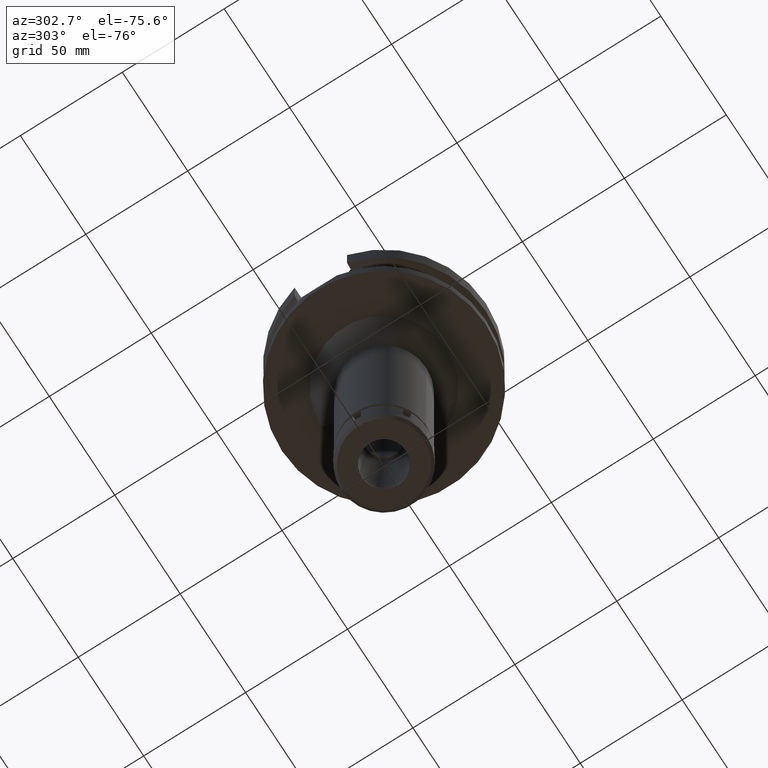
[diagram: clean part render]
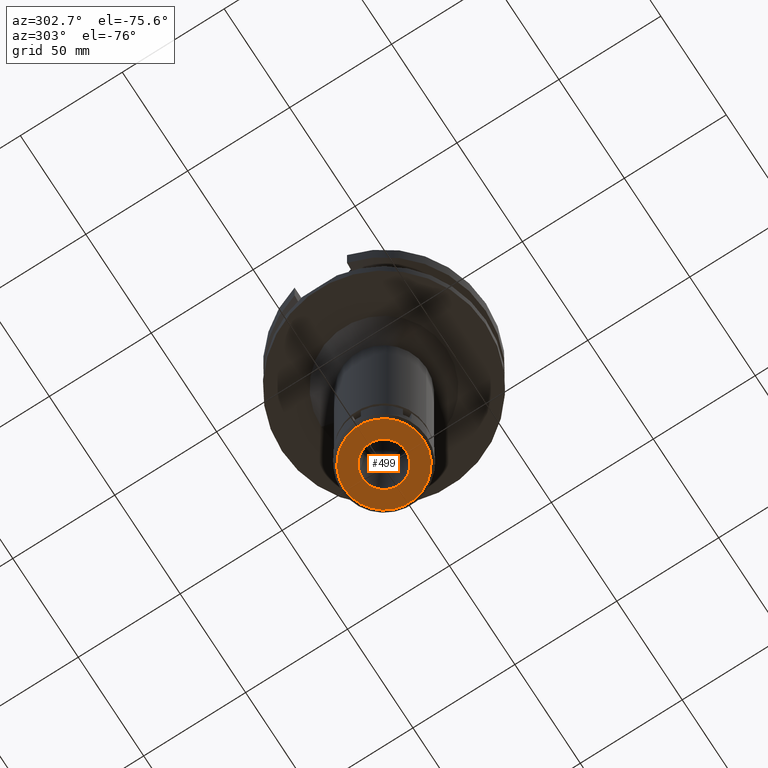
[diagram: same view with one face highlighted and labeled with its STEP entity id]
A machine part, auxiliary view. The second image highlights one B-rep face of the part: STEP entity #499.
In plain terms, the highlighted planar face has unit normal (0, 0, -1).
Its self-contained STEP definition (entity closure, byte-faithful):
#2 = CARTESIAN_POINT ( 'NONE',  ( 0.0000000000000000000, -19.50000000000000000, -16.00000000000000000 ) ) ;
#230 = AXIS2_PLACEMENT_3D ( 'NONE', #1723, #1465, #3654 ) ;
#285 = FACE_BOUND ( 'NONE', #554, .T. ) ;
#302 = DIRECTION ( 'NONE',  ( 0.0000000000000000000, 0.0000000000000000000, -1.000000000000000000 ) ) ;
#439 = CARTESIAN_POINT ( 'NONE',  ( 0.0000000000000000000, 10.75000000000000000, -16.00000000000000000 ) ) ;
#499 = ADVANCED_FACE ( 'NONE', ( #3680, #285 ), #580, .T. ) ;
#554 = EDGE_LOOP ( 'NONE', ( #2275, #1354 ) ) ;
#580 = PLANE ( 'NONE',  #1486 ) ;
#633 = DIRECTION ( 'NONE',  ( 0.0000000000000000000, 0.0000000000000000000, -1.000000000000000000 ) ) ;
#754 = CIRCLE ( 'NONE', #2975, 19.50000000000000000 ) ;
#792 = EDGE_CURVE ( 'NONE', #1659, #1937, #1664, .T. ) ;
#966 = DIRECTION ( 'NONE',  ( 0.0000000000000000000, -1.000000000000000000, 0.0000000000000000000 ) ) ;
#1029 = EDGE_CURVE ( 'NONE', #3659, #1116, #1300, .T. ) ;
#1116 = VERTEX_POINT ( 'NONE', #2695 ) ;
#1300 = CIRCLE ( 'NONE', #3376, 10.75000000000000000 ) ;
#1354 = ORIENTED_EDGE ( 'NONE', *, *, #2007, .F. ) ;
#1465 = DIRECTION ( 'NONE',  ( 0.0000000000000000000, 0.0000000000000000000, -1.000000000000000000 ) ) ;
#1486 = AXIS2_PLACEMENT_3D ( 'NONE', #3196, #633, #966 ) ;
#1659 = VERTEX_POINT ( 'NONE', #2360 ) ;
#1664 = CIRCLE ( 'NONE', #2792, 19.50000000000000000 ) ;
#1679 = EDGE_CURVE ( 'NONE', #1937, #1659, #754, .T. ) ;
#1723 = CARTESIAN_POINT ( 'NONE',  ( 0.0000000000000000000, 0.0000000000000000000, -16.00000000000000000 ) ) ;
#1898 = CARTESIAN_POINT ( 'NONE',  ( 0.0000000000000000000, 0.0000000000000000000, -16.00000000000000000 ) ) ;
#1937 = VERTEX_POINT ( 'NONE', #2 ) ;
#1947 = EDGE_LOOP ( 'NONE', ( #3398, #3498 ) ) ;
#1999 = DIRECTION ( 'NONE',  ( 0.0000000000000000000, 1.000000000000000000, 0.0000000000000000000 ) ) ;
#2007 = EDGE_CURVE ( 'NONE', #1116, #3659, #3566, .T. ) ;
#2049 = CARTESIAN_POINT ( 'NONE',  ( 0.0000000000000000000, 0.0000000000000000000, -16.00000000000000000 ) ) ;
#2092 = DIRECTION ( 'NONE',  ( 0.0000000000000000000, 0.0000000000000000000, 1.000000000000000000 ) ) ;
#2275 = ORIENTED_EDGE ( 'NONE', *, *, #1029, .F. ) ;
#2360 = CARTESIAN_POINT ( 'NONE',  ( 0.0000000000000000000, 19.50000000000000000, -16.00000000000000000 ) ) ;
#2529 = DIRECTION ( 'NONE',  ( 0.0000000000000000000, 0.0000000000000000000, 1.000000000000000000 ) ) ;
#2566 = CARTESIAN_POINT ( 'NONE',  ( 0.0000000000000000000, 0.0000000000000000000, -16.00000000000000000 ) ) ;
#2634 = DIRECTION ( 'NONE',  ( 0.0000000000000000000, -1.000000000000000000, 0.0000000000000000000 ) ) ;
#2695 = CARTESIAN_POINT ( 'NONE',  ( 0.0000000000000000000, -10.75000000000000000, -16.00000000000000000 ) ) ;
#2792 = AXIS2_PLACEMENT_3D ( 'NONE', #1898, #2529, #3016 ) ;
#2975 = AXIS2_PLACEMENT_3D ( 'NONE', #2049, #2092, #2634 ) ;
#3016 = DIRECTION ( 'NONE',  ( 0.0000000000000000000, 1.000000000000000000, 0.0000000000000000000 ) ) ;
#3196 = CARTESIAN_POINT ( 'NONE',  ( 0.0000000000000000000, 0.0000000000000000000, -16.00000000000000000 ) ) ;
#3376 = AXIS2_PLACEMENT_3D ( 'NONE', #2566, #302, #1999 ) ;
#3398 = ORIENTED_EDGE ( 'NONE', *, *, #792, .F. ) ;
#3498 = ORIENTED_EDGE ( 'NONE', *, *, #1679, .F. ) ;
#3566 = CIRCLE ( 'NONE', #230, 10.75000000000000000 ) ;
#3654 = DIRECTION ( 'NONE',  ( 0.0000000000000000000, -1.000000000000000000, 0.0000000000000000000 ) ) ;
#3659 = VERTEX_POINT ( 'NONE', #439 ) ;
#3680 = FACE_OUTER_BOUND ( 'NONE', #1947, .T. ) ;